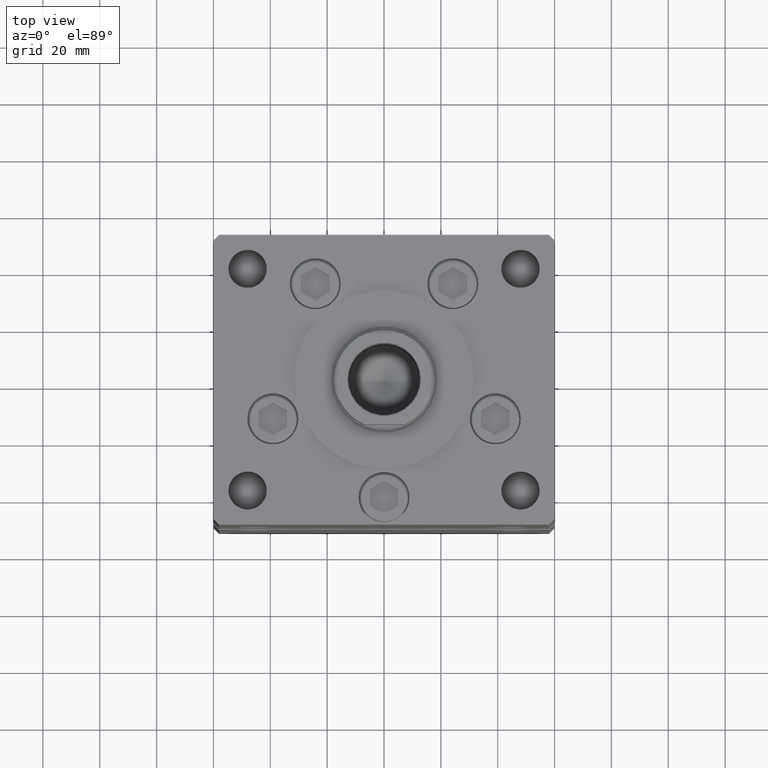
[diagram: clean part render]
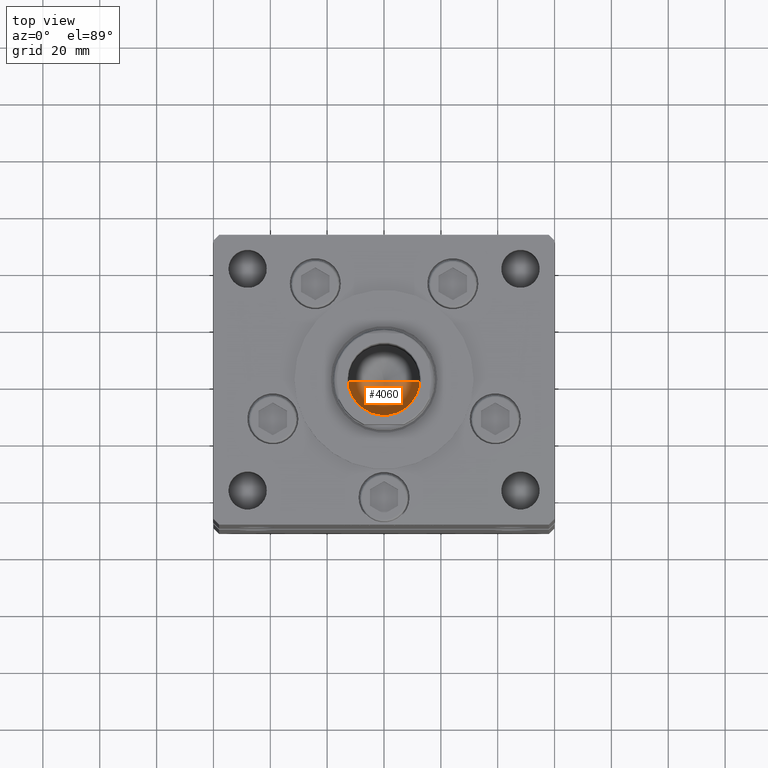
[diagram: same view with one face highlighted and labeled with its STEP entity id]
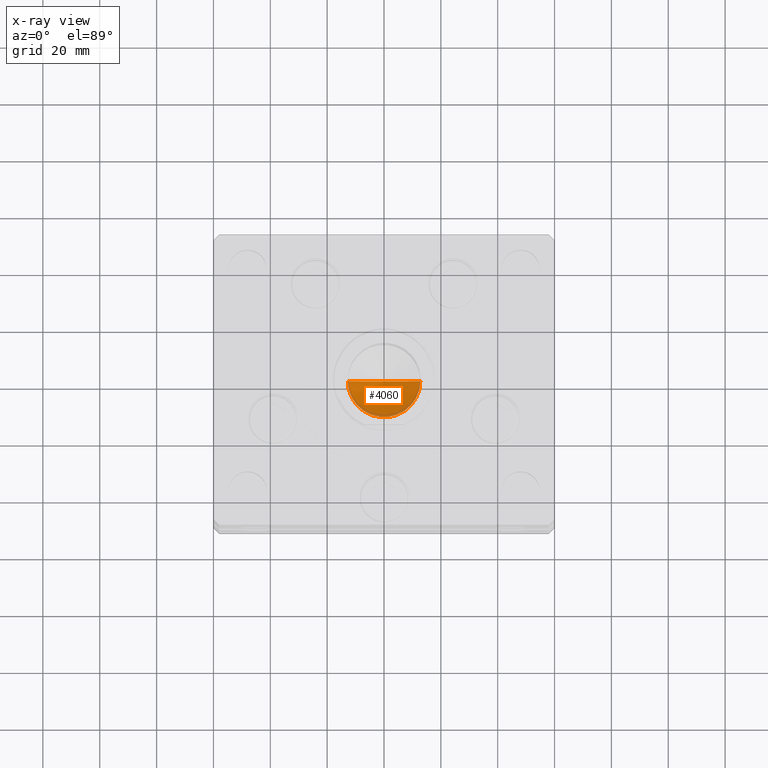
[diagram: x-ray of the same camera — body ghosted, the highlighted face saturated]
A machine part, top view. The second image highlights one B-rep face of the part: STEP entity #4060.
The next image is the same camera in x-ray: the body ghosted, the highlighted face saturated — about 8% of this face is hidden behind the body in this view.
In plain terms, the highlighted conical surface has half-angle 59 deg.
Its self-contained STEP definition (entity closure, byte-faithful):
#3916 = VERTEX_POINT ( 'NONE', #16277 ) ;
#4060 = ADVANCED_FACE ( 'NONE', ( #45539 ), #31927, .F. ) ;
#6164 = DIRECTION ( 'NONE',  ( 1.000000000000000000, 0.000000000000000000, 0.000000000000000000 ) ) ;
#8746 = CARTESIAN_POINT ( 'NONE',  ( 0.000000000000000000, 0.000000000000000000, 124.2500000000000142 ) ) ;
#11513 = DIRECTION ( 'NONE',  ( 0.8571673007021117785, 0.000000000000000000, 0.5150380749100550437 ) ) ;
#15009 = DIRECTION ( 'NONE',  ( -0.000000000000000000, -0.000000000000000000, 1.000000000000000000 ) ) ;
#16277 = CARTESIAN_POINT ( 'NONE',  ( -12.74999999999999112, 1.561424668912874125E-15, 124.2500000000000142 ) ) ;
#16591 = LINE ( 'NONE', #44273, #28430 ) ;
#19347 = EDGE_CURVE ( 'NONE', #25384, #20506, #16591, .T. ) ;
#20506 = VERTEX_POINT ( 'NONE', #31277 ) ;
#24090 = ORIENTED_EDGE ( 'NONE', *, *, #29434, .T. ) ;
#25118 = DIRECTION ( 'NONE',  ( -0.000000000000000000, -0.000000000000000000, 1.000000000000000000 ) ) ;
#25384 = VERTEX_POINT ( 'NONE', #27942 ) ;
#26795 = AXIS2_PLACEMENT_3D ( 'NONE', #8746, #25118, #41516 ) ;
#27942 = CARTESIAN_POINT ( 'NONE',  ( -1.307202896762960287E-14, 0.000000000000000000, 116.5890271073986213 ) ) ;
#28430 = VECTOR ( 'NONE', #11513, 1000.000000000000000 ) ;
#29434 = EDGE_CURVE ( 'NONE', #3916, #20506, #32932, .T. ) ;
#29496 = ORIENTED_EDGE ( 'NONE', *, *, #45545, .T. ) ;
#31277 = CARTESIAN_POINT ( 'NONE',  ( 12.74999999999999112, 0.000000000000000000, 124.2500000000000142 ) ) ;
#31927 = CONICAL_SURFACE ( 'NONE', #26795, 12.74999999999999112, 1.029744258676653423 ) ;
#32887 = LINE ( 'NONE', #49544, #44552 ) ;
#32932 = CIRCLE ( 'NONE', #46675, 12.74999999999999112 ) ;
#33181 = EDGE_LOOP ( 'NONE', ( #42222, #29496, #24090 ) ) ;
#34619 = CARTESIAN_POINT ( 'NONE',  ( 0.000000000000000000, 0.000000000000000000, 124.2500000000000142 ) ) ;
#37183 = DIRECTION ( 'NONE',  ( -0.8571673007021117785, 1.049727191138617956E-16, 0.5150380749100550437 ) ) ;
#41516 = DIRECTION ( 'NONE',  ( 1.000000000000000000, 0.000000000000000000, 0.000000000000000000 ) ) ;
#42222 = ORIENTED_EDGE ( 'NONE', *, *, #19347, .F. ) ;
#44273 = CARTESIAN_POINT ( 'NONE',  ( 12.74999999999999112, 0.000000000000000000, 124.2500000000000142 ) ) ;
#44552 = VECTOR ( 'NONE', #37183, 1000.000000000000000 ) ;
#45539 = FACE_OUTER_BOUND ( 'NONE', #33181, .T. ) ;
#45545 = EDGE_CURVE ( 'NONE', #25384, #3916, #32887, .T. ) ;
#46675 = AXIS2_PLACEMENT_3D ( 'NONE', #34619, #15009, #6164 ) ;
#49544 = CARTESIAN_POINT ( 'NONE',  ( -12.74999999999999112, 1.561424668912874125E-15, 124.2500000000000142 ) ) ;